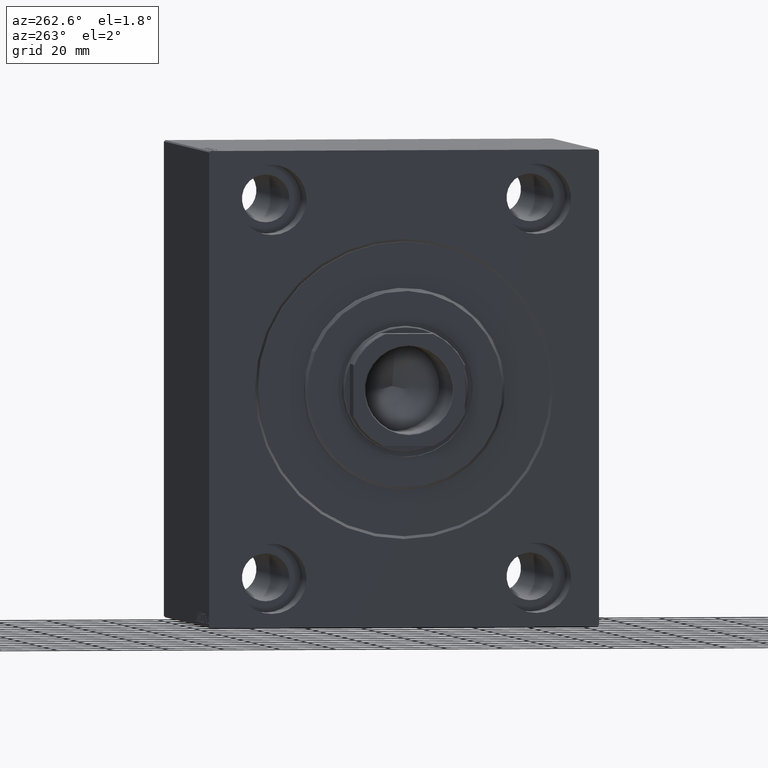
[diagram: clean part render]
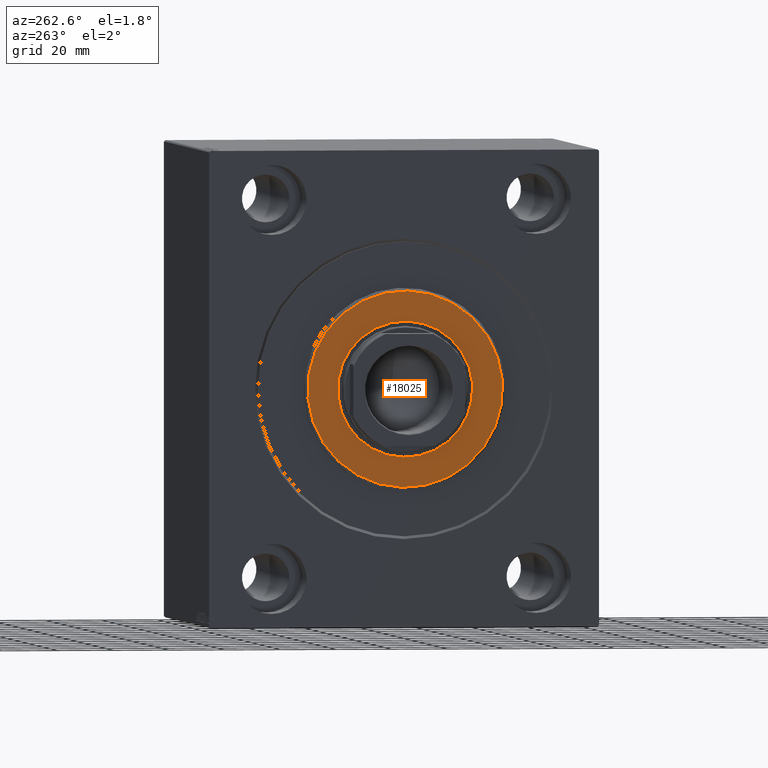
[diagram: same view with one face highlighted and labeled with its STEP entity id]
A machine part, auxiliary view. The second image highlights one B-rep face of the part: STEP entity #18025.
In plain terms, the highlighted planar face has unit normal (-1, 0, 0).
Its self-contained STEP definition (entity closure, byte-faithful):
#476 = CARTESIAN_POINT ( 'NONE',  ( 3.000000000000000000, 2.969768487932331287E-15, -24.25000000000000000 ) ) ;
#2705 = FACE_OUTER_BOUND ( 'NONE', #29458, .T. ) ;
#3207 = VERTEX_POINT ( 'NONE', #20013 ) ;
#4302 = AXIS2_PLACEMENT_3D ( 'NONE', #39673, #26088, #19190 ) ;
#5776 = AXIS2_PLACEMENT_3D ( 'NONE', #6529, #20102, #26346 ) ;
#6529 = CARTESIAN_POINT ( 'NONE',  ( 3.000000000000000000, 0.000000000000000000, 0.000000000000000000 ) ) ;
#6625 = CARTESIAN_POINT ( 'NONE',  ( 3.000000000000000000, 0.000000000000000000, 0.000000000000000000 ) ) ;
#9252 = VERTEX_POINT ( 'NONE', #476 ) ;
#12263 = ORIENTED_EDGE ( 'NONE', *, *, #39436, .T. ) ;
#14118 = EDGE_LOOP ( 'NONE', ( #36235, #39728 ) ) ;
#14623 = CARTESIAN_POINT ( 'NONE',  ( 3.000000000000000000, 0.000000000000000000, 0.000000000000000000 ) ) ;
#16590 = CIRCLE ( 'NONE', #25854, 24.25000000000000000 ) ;
#18025 = ADVANCED_FACE ( 'NONE', ( #2705, #28986 ), #29635, .T. ) ;
#18187 = DIRECTION ( 'NONE',  ( 1.000000000000000000, -0.000000000000000000, 0.000000000000000000 ) ) ;
#18585 = CIRCLE ( 'NONE', #5776, 24.25000000000000000 ) ;
#19190 = DIRECTION ( 'NONE',  ( 0.000000000000000000, 0.000000000000000000, -1.000000000000000000 ) ) ;
#19864 = CARTESIAN_POINT ( 'NONE',  ( 3.000000000000000000, 0.000000000000000000, 0.000000000000000000 ) ) ;
#20013 = CARTESIAN_POINT ( 'NONE',  ( 3.000000000000000000, 4.347496136973104859E-15, -35.00000000000001421 ) ) ;
#20102 = DIRECTION ( 'NONE',  ( -1.000000000000000000, 0.000000000000000000, -0.000000000000000000 ) ) ;
#20306 = DIRECTION ( 'NONE',  ( -1.000000000000000000, 0.000000000000000000, -0.000000000000000000 ) ) ;
#22365 = VERTEX_POINT ( 'NONE', #37639 ) ;
#23881 = DIRECTION ( 'NONE',  ( 0.000000000000000000, 0.000000000000000000, -1.000000000000000000 ) ) ;
#24479 = CIRCLE ( 'NONE', #39388, 35.00000000000001421 ) ;
#24542 = CIRCLE ( 'NONE', #28084, 35.00000000000001421 ) ;
#25854 = AXIS2_PLACEMENT_3D ( 'NONE', #19864, #20306, #23881 ) ;
#26088 = DIRECTION ( 'NONE',  ( 1.000000000000000000, -0.000000000000000000, 0.000000000000000000 ) ) ;
#26346 = DIRECTION ( 'NONE',  ( 0.000000000000000000, 0.000000000000000000, -1.000000000000000000 ) ) ;
#27933 = EDGE_CURVE ( 'NONE', #9252, #40237, #18585, .T. ) ;
#28084 = AXIS2_PLACEMENT_3D ( 'NONE', #14623, #18187, #37803 ) ;
#28986 = FACE_BOUND ( 'NONE', #14118, .T. ) ;
#29458 = EDGE_LOOP ( 'NONE', ( #12263, #31527 ) ) ;
#29635 = PLANE ( 'NONE',  #4302 ) ;
#31527 = ORIENTED_EDGE ( 'NONE', *, *, #42286, .T. ) ;
#33785 = DIRECTION ( 'NONE',  ( 0.000000000000000000, 0.000000000000000000, -1.000000000000000000 ) ) ;
#34228 = DIRECTION ( 'NONE',  ( 1.000000000000000000, -0.000000000000000000, 0.000000000000000000 ) ) ;
#36235 = ORIENTED_EDGE ( 'NONE', *, *, #37484, .T. ) ;
#37484 = EDGE_CURVE ( 'NONE', #40237, #9252, #16590, .T. ) ;
#37639 = CARTESIAN_POINT ( 'NONE',  ( 3.000000000000000000, 0.000000000000000000, 35.00000000000001421 ) ) ;
#37803 = DIRECTION ( 'NONE',  ( 0.000000000000000000, 0.000000000000000000, -1.000000000000000000 ) ) ;
#39388 = AXIS2_PLACEMENT_3D ( 'NONE', #6625, #34228, #33785 ) ;
#39436 = EDGE_CURVE ( 'NONE', #22365, #3207, #24479, .T. ) ;
#39595 = CARTESIAN_POINT ( 'NONE',  ( 3.000000000000000000, 0.000000000000000000, 24.25000000000000000 ) ) ;
#39673 = CARTESIAN_POINT ( 'NONE',  ( 3.000000000000000000, 0.000000000000000000, 0.000000000000000000 ) ) ;
#39728 = ORIENTED_EDGE ( 'NONE', *, *, #27933, .T. ) ;
#40237 = VERTEX_POINT ( 'NONE', #39595 ) ;
#42286 = EDGE_CURVE ( 'NONE', #3207, #22365, #24542, .T. ) ;